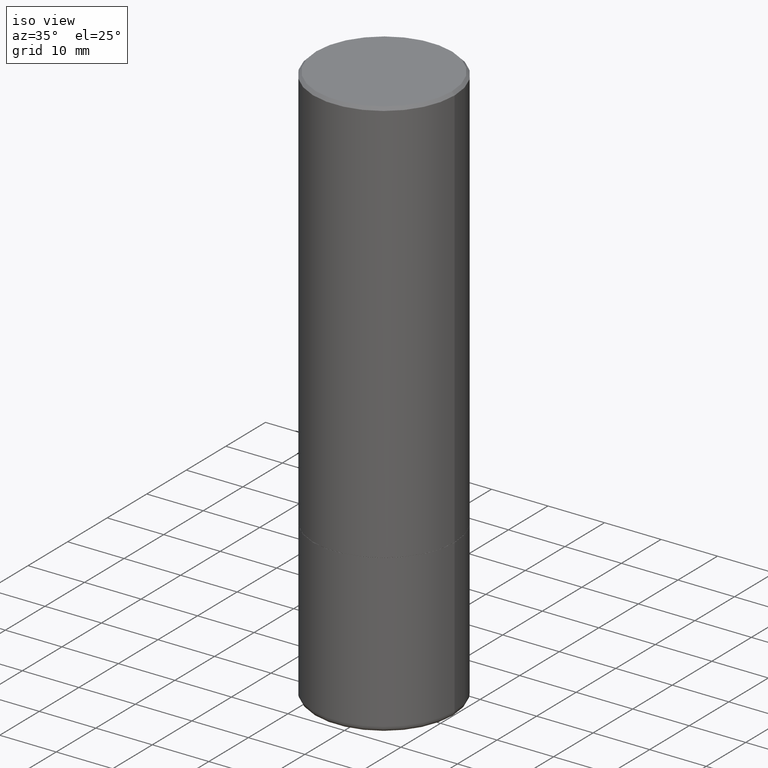
[diagram: clean part render]
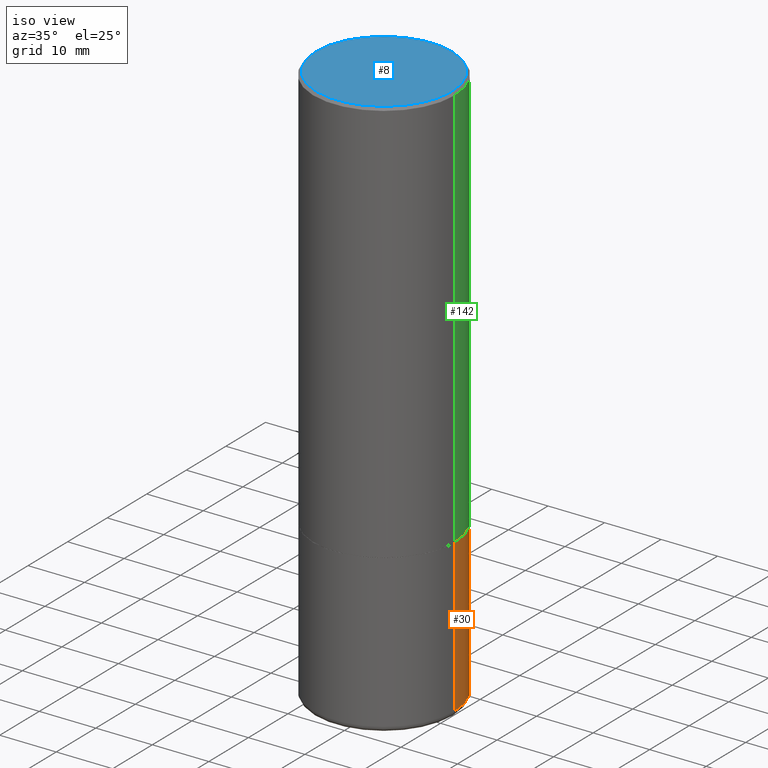
[diagram: same view with three faces highlighted in distinct colors, each labeled with its STEP entity id]
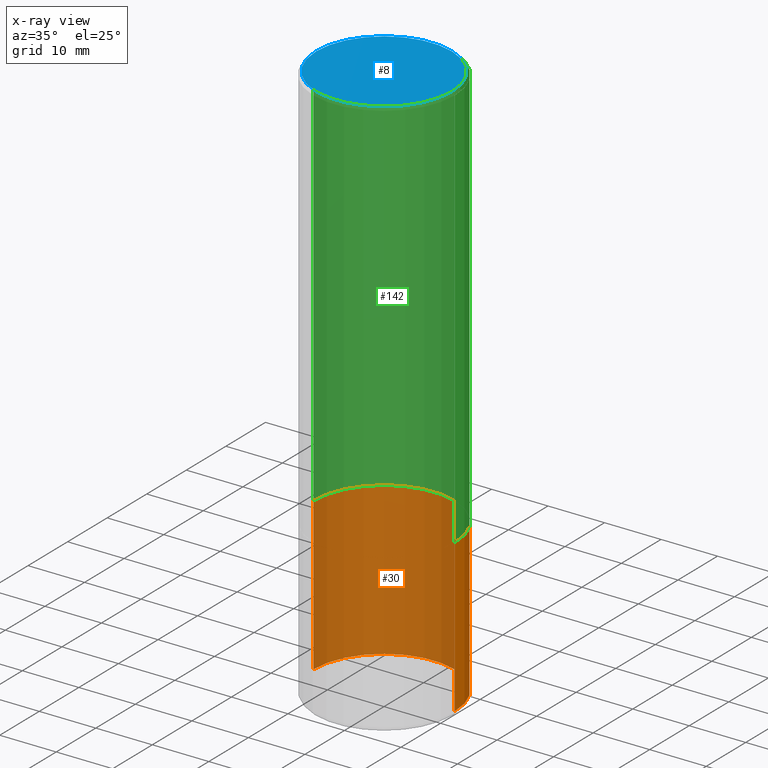
[diagram: x-ray of the same camera — body ghosted, the three highlighted faces saturated]
A machine part, iso view with three faces highlighted in distinct colors.
The next image is the same camera in x-ray (body ghosted, the three faces saturated) — at least one of them is partly hidden behind the body in this view.
Their STEP definitions:

[orange] entity #30 — the highlighted cylindrical surface (partial cylindrical patch) has radius 12.5006 mm, axis along (-0, 0, 1).
#1 = CARTESIAN_POINT ( 'NONE',  ( -0.4921499999999999764, 3.496936074043332897E-15, -2.420853904668951509E-29 ) ) ;
#5 = AXIS2_PLACEMENT_3D ( 'NONE', #11, #272, #70 ) ;
#11 = CARTESIAN_POINT ( 'NONE',  ( 0.000000000000000000, 0.000000000000000000, 0.000000000000000000 ) ) ;
#20 = VERTEX_POINT ( 'NONE', #239 ) ;
#30 = ADVANCED_FACE ( 'NONE', ( #260 ), #230, .T. ) ;
#41 = VERTEX_POINT ( 'NONE', #136 ) ;
#56 = LINE ( 'NONE', #288, #93 ) ;
#70 = DIRECTION ( 'NONE',  ( 1.000000000000000000, -6.982962677686265922E-15, 4.876176775795935793E-29 ) ) ;
#75 = CARTESIAN_POINT ( 'NONE',  ( -0.4921499999999999764, -8.255739260636578857E-15, -2.834600000000000009 ) ) ;
#80 = DIRECTION ( 'NONE',  ( 1.000000000000000000, -6.982962677686265922E-15, 0.000000000000000000 ) ) ;
#92 = DIRECTION ( 'NONE',  ( -2.445468806185136877E-29, 3.491481338843145188E-15, 1.000000000000000000 ) ) ;
#93 = VECTOR ( 'NONE', #162, 39.37007874015748143 ) ;
#100 = VERTEX_POINT ( 'NONE', #75 ) ;
#119 = LINE ( 'NONE', #1, #262 ) ;
#128 = ORIENTED_EDGE ( 'NONE', *, *, #205, .T. ) ;
#136 = CARTESIAN_POINT ( 'NONE',  ( 0.4921499999999998098, -1.704506274809833840E-14, -3.897600000000000176 ) ) ;
#144 = AXIS2_PLACEMENT_3D ( 'NONE', #406, #306, #80 ) ;
#157 = DIRECTION ( 'NONE',  ( 1.000000000000000000, -6.982962677686265922E-15, 0.000000000000000000 ) ) ;
#161 = ORIENTED_EDGE ( 'NONE', *, *, #281, .F. ) ;
#162 = DIRECTION ( 'NONE',  ( -2.445468806185136877E-29, 3.491481338843145188E-15, 1.000000000000000000 ) ) ;
#166 = ORIENTED_EDGE ( 'NONE', *, *, #345, .F. ) ;
#205 = EDGE_CURVE ( 'NONE', #41, #393, #355, .T. ) ;
#215 = DIRECTION ( 'NONE',  ( -2.445468806185136597E-29, 3.491481338843145583E-15, 1.000000000000000000 ) ) ;
#219 = CARTESIAN_POINT ( 'NONE',  ( -0.4921499999999998098, -1.011146159223171209E-14, -3.897600000000000176 ) ) ;
#230 = CYLINDRICAL_SURFACE ( 'NONE', #5, 0.4921499999999999764 ) ;
#239 = CARTESIAN_POINT ( 'NONE',  ( 0.4921499999999999764, -1.333361808490807666E-14, -2.834600000000000009 ) ) ;
#242 = CIRCLE ( 'NONE', #341, 0.4921499999999999764 ) ;
#260 = FACE_OUTER_BOUND ( 'NONE', #399, .T. ) ;
#262 = VECTOR ( 'NONE', #92, 39.37007874015748143 ) ;
#272 = DIRECTION ( 'NONE',  ( -2.445468806185136597E-29, 3.491481338843145583E-15, 1.000000000000000000 ) ) ;
#281 = EDGE_CURVE ( 'NONE', #41, #20, #56, .T. ) ;
#285 = CARTESIAN_POINT ( 'NONE',  ( 6.931925878012387517E-29, -9.896953003084780885E-15, -2.834600000000000009 ) ) ;
#288 = CARTESIAN_POINT ( 'NONE',  ( 0.4921499999999999764, -3.436665081823295777E-15, 2.399810400207969603E-29 ) ) ;
#306 = DIRECTION ( 'NONE',  ( -2.445468806185136597E-29, 3.491481338843145583E-15, 1.000000000000000000 ) ) ;
#341 = AXIS2_PLACEMENT_3D ( 'NONE', #285, #215, #157 ) ;
#345 = EDGE_CURVE ( 'NONE', #20, #100, #242, .T. ) ;
#355 = CIRCLE ( 'NONE', #144, 0.4921499999999999764 ) ;
#376 = EDGE_CURVE ( 'NONE', #393, #100, #119, .T. ) ;
#391 = ORIENTED_EDGE ( 'NONE', *, *, #376, .T. ) ;
#393 = VERTEX_POINT ( 'NONE', #219 ) ;
#399 = EDGE_LOOP ( 'NONE', ( #128, #391, #166, #161 ) ) ;
#406 = CARTESIAN_POINT ( 'NONE',  ( 9.531459218987189074E-29, -1.360839766627504420E-14, -3.897600000000000176 ) ) ;

[blue] entity #8 — the highlighted planar face has unit normal (0, -0, -1).
#8 = ADVANCED_FACE ( 'NONE', ( #323 ), #334, .F. ) ;
#14 = DIRECTION ( 'NONE',  ( 2.438088387897960049E-29, -3.491481338843145188E-15, -1.000000000000000000 ) ) ;
#34 = CARTESIAN_POINT ( 'NONE',  ( 3.297005828269567997E-15, 0.4721499999999996255, -1.509776258206526442E-15 ) ) ;
#61 = VERTEX_POINT ( 'NONE', #63 ) ;
#63 = CARTESIAN_POINT ( 'NONE',  ( 0.4721499999999996255, -3.342703923013973791E-15, 2.774533118565500199E-16 ) ) ;
#105 = EDGE_CURVE ( 'NONE', #305, #61, #187, .T. ) ;
#114 = DIRECTION ( 'NONE',  ( -2.445468806185136597E-29, 3.491481338843145583E-15, 1.000000000000000000 ) ) ;
#122 = AXIS2_PLACEMENT_3D ( 'NONE', #243, #404, #177 ) ;
#134 = ORIENTED_EDGE ( 'NONE', *, *, #105, .T. ) ;
#148 = CARTESIAN_POINT ( 'NONE',  ( -6.785034193178930130E-45, 9.687230607472910058E-31, 2.774533118565267978E-16 ) ) ;
#156 = EDGE_CURVE ( 'NONE', #61, #305, #417, .T. ) ;
#177 = DIRECTION ( 'NONE',  ( 1.000000000000000000, -6.982962677686265922E-15, 4.882029041999365698E-29 ) ) ;
#187 = CIRCLE ( 'NONE', #122, 0.4721499999999996255 ) ;
#243 = CARTESIAN_POINT ( 'NONE',  ( -6.785034193178930130E-45, 9.687230607472910058E-31, 2.774533118565267978E-16 ) ) ;
#286 = ORIENTED_EDGE ( 'NONE', *, *, #156, .T. ) ;
#294 = DIRECTION ( 'NONE',  ( -1.000000000000000000, 6.982962677686265922E-15, -4.876176775795935793E-29 ) ) ;
#305 = VERTEX_POINT ( 'NONE', #416 ) ;
#310 = DIRECTION ( 'NONE',  ( 1.000000000000000000, -6.982962677686265922E-15, 4.882029041999365698E-29 ) ) ;
#319 = AXIS2_PLACEMENT_3D ( 'NONE', #34, #14, #294 ) ;
#323 = FACE_OUTER_BOUND ( 'NONE', #385, .T. ) ;
#325 = AXIS2_PLACEMENT_3D ( 'NONE', #148, #114, #310 ) ;
#334 = PLANE ( 'NONE',  #319 ) ;
#385 = EDGE_LOOP ( 'NONE', ( #134, #286 ) ) ;
#404 = DIRECTION ( 'NONE',  ( -2.445468806185136597E-29, 3.491481338843145583E-15, 1.000000000000000000 ) ) ;
#416 = CARTESIAN_POINT ( 'NONE',  ( -0.4721499999999996255, 3.331920641658000829E-15, 2.774533118565036250E-16 ) ) ;
#417 = CIRCLE ( 'NONE', #325, 0.4721499999999996255 ) ;

[green] entity #142 — the highlighted cylindrical surface (partial cylindrical patch) has radius 12.5006 mm, axis along (-0, 0, 1).
#17 = CARTESIAN_POINT ( 'NONE',  ( 0.000000000000000000, 0.000000000000000000, 0.000000000000000000 ) ) ;
#52 = DIRECTION ( 'NONE',  ( -2.445468806185136877E-29, 3.491481338843145188E-15, 1.000000000000000000 ) ) ;
#54 = CARTESIAN_POINT ( 'NONE',  ( 6.929480409206204157E-29, -9.893461521745937878E-15, -2.833600000000000119 ) ) ;
#58 = EDGE_CURVE ( 'NONE', #348, #298, #110, .T. ) ;
#67 = ORIENTED_EDGE ( 'NONE', *, *, #94, .T. ) ;
#74 = ORIENTED_EDGE ( 'NONE', *, *, #126, .T. ) ;
#77 = DIRECTION ( 'NONE',  ( -2.445468806185136877E-29, 3.491481338843145188E-15, 1.000000000000000000 ) ) ;
#84 = AXIS2_PLACEMENT_3D ( 'NONE', #54, #280, #181 ) ;
#94 = EDGE_CURVE ( 'NONE', #362, #298, #402, .T. ) ;
#107 = DIRECTION ( 'NONE',  ( -2.445468806185136597E-29, 3.491481338843145583E-15, 1.000000000000000000 ) ) ;
#110 = CIRCLE ( 'NONE', #261, 0.4921499999999999764 ) ;
#126 = EDGE_CURVE ( 'NONE', #149, #362, #327, .T. ) ;
#142 = ADVANCED_FACE ( 'NONE', ( #184 ), #338, .T. ) ;
#149 = VERTEX_POINT ( 'NONE', #369 ) ;
#160 = VECTOR ( 'NONE', #77, 39.37007874015748143 ) ;
#181 = DIRECTION ( 'NONE',  ( 1.000000000000000000, -6.982962677686265922E-15, 0.000000000000000000 ) ) ;
#184 = FACE_OUTER_BOUND ( 'NONE', #291, .T. ) ;
#189 = CARTESIAN_POINT ( 'NONE',  ( -0.4921500000000003094, -1.484709500218062761E-15, -2.833600000000000119 ) ) ;
#191 = AXIS2_PLACEMENT_3D ( 'NONE', #17, #339, #311 ) ;
#197 = ORIENTED_EDGE ( 'NONE', *, *, #246, .F. ) ;
#204 = CARTESIAN_POINT ( 'NONE',  ( 4.890937612370299433E-31, -6.982962677686328587E-17, -0.02000000000000010797 ) ) ;
#209 = CARTESIAN_POINT ( 'NONE',  ( -0.4921500000000000874, 3.496936074043333686E-15, -2.420853904668952350E-29 ) ) ;
#212 = VECTOR ( 'NONE', #52, 39.37007874015748143 ) ;
#246 = EDGE_CURVE ( 'NONE', #149, #348, #373, .T. ) ;
#261 = AXIS2_PLACEMENT_3D ( 'NONE', #204, #107, #358 ) ;
#280 = DIRECTION ( 'NONE',  ( -2.445468806185136597E-29, 3.491481338843145583E-15, 1.000000000000000000 ) ) ;
#291 = EDGE_LOOP ( 'NONE', ( #74, #67, #344, #197 ) ) ;
#298 = VERTEX_POINT ( 'NONE', #320 ) ;
#311 = DIRECTION ( 'NONE',  ( 1.000000000000000000, -6.982962677686265922E-15, 4.876176775795935793E-29 ) ) ;
#315 = CARTESIAN_POINT ( 'NONE',  ( 0.4921499999999999764, -3.446223716380122349E-15, -0.02000000000000010797 ) ) ;
#320 = CARTESIAN_POINT ( 'NONE',  ( -0.4921499999999999764, 3.366835455046432478E-15, -0.02000000000000010797 ) ) ;
#327 = CIRCLE ( 'NONE', #84, 0.4921500000000003094 ) ;
#338 = CYLINDRICAL_SURFACE ( 'NONE', #191, 0.4921500000000000874 ) ;
#339 = DIRECTION ( 'NONE',  ( -2.445468806185136597E-29, 3.491481338843145583E-15, 1.000000000000000000 ) ) ;
#344 = ORIENTED_EDGE ( 'NONE', *, *, #58, .F. ) ;
#348 = VERTEX_POINT ( 'NONE', #315 ) ;
#358 = DIRECTION ( 'NONE',  ( 1.000000000000000000, -6.982962677686265922E-15, 0.000000000000000000 ) ) ;
#362 = VERTEX_POINT ( 'NONE', #189 ) ;
#369 = CARTESIAN_POINT ( 'NONE',  ( 0.4921500000000003094, -1.333012660356923523E-14, -2.833600000000000119 ) ) ;
#372 = CARTESIAN_POINT ( 'NONE',  ( 0.4921500000000000874, -3.436665081823296565E-15, 2.399810400207970163E-29 ) ) ;
#373 = LINE ( 'NONE', #372, #160 ) ;
#402 = LINE ( 'NONE', #209, #212 ) ;